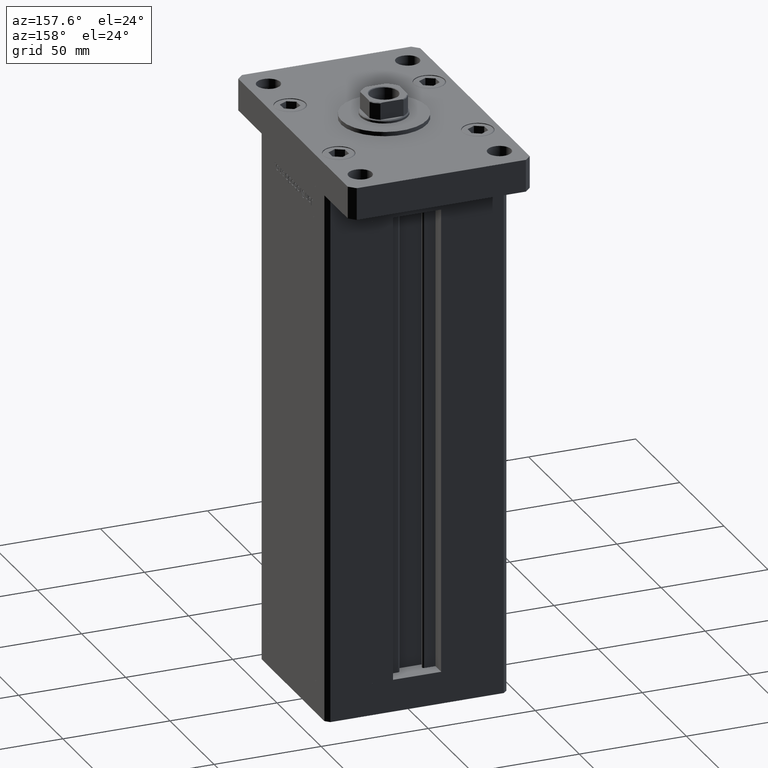
[diagram: clean part render]
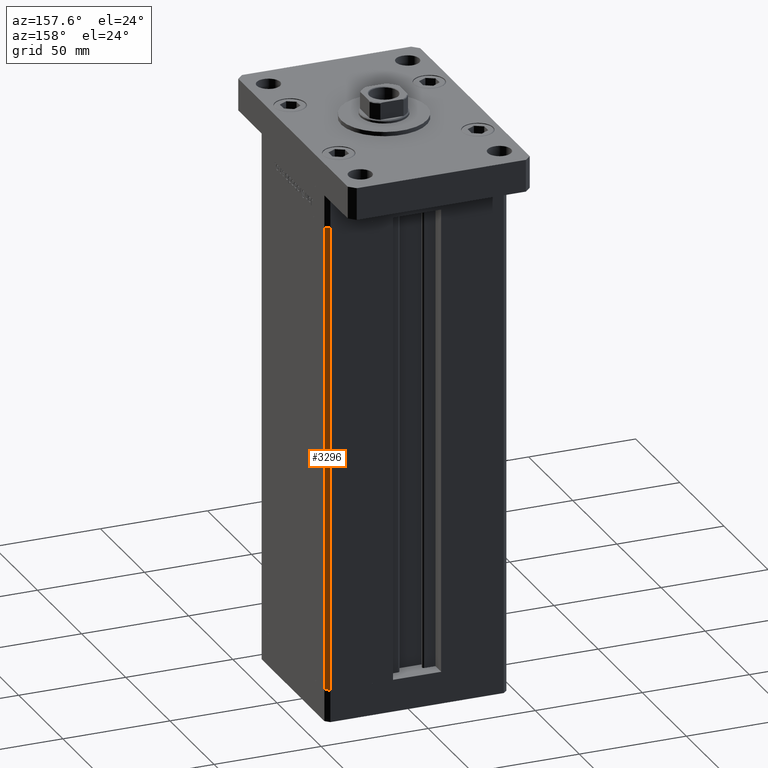
[diagram: same view with one face highlighted and labeled with its STEP entity id]
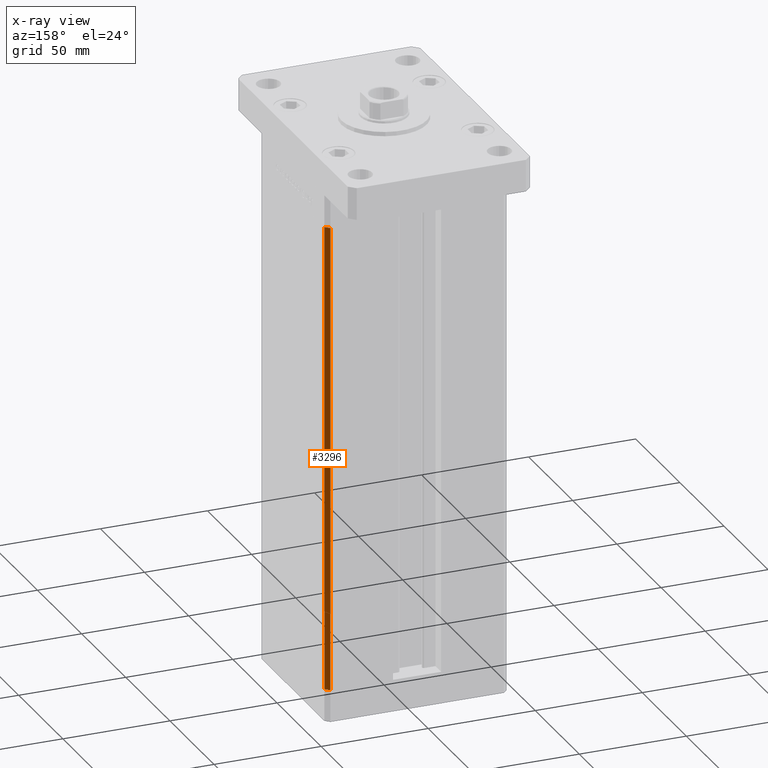
[diagram: x-ray of the same camera — body ghosted, the highlighted face saturated]
A machine part, auxiliary view. The second image highlights one B-rep face of the part: STEP entity #3296.
The next image is the same camera in x-ray: the body ghosted, the highlighted face saturated — about 0% of this face is hidden behind the body in this view.
In plain terms, the highlighted planar face has unit normal (0.7071, 0.7071, 0).
Its self-contained STEP definition (entity closure, byte-faithful):
#3296 = ADVANCED_FACE ( 'NONE', ( #32459 ), #7267, .T. ) ;
#4500 = EDGE_LOOP ( 'NONE', ( #31798, #11440, #11830, #12795 ) ) ;
#4830 = EDGE_CURVE ( 'NONE', #48698, #49487, #38785, .T. ) ;
#5051 = LINE ( 'NONE', #41919, #22099 ) ;
#5988 = CARTESIAN_POINT ( 'NONE',  ( 42.50000000000000711, 35.50000000000001421, 218.5000000000000000 ) ) ;
#6740 = CARTESIAN_POINT ( 'NONE',  ( 40.50000000000000000, 37.50000000000000711, 218.5000000000000000 ) ) ;
#7267 = PLANE ( 'NONE',  #30655 ) ;
#8774 = VERTEX_POINT ( 'NONE', #33570 ) ;
#11440 = ORIENTED_EDGE ( 'NONE', *, *, #36210, .F. ) ;
#11830 = ORIENTED_EDGE ( 'NONE', *, *, #47966, .T. ) ;
#12795 = ORIENTED_EDGE ( 'NONE', *, *, #4830, .T. ) ;
#15139 = LINE ( 'NONE', #15935, #47243 ) ;
#15935 = CARTESIAN_POINT ( 'NONE',  ( 40.50000000000000000, 37.50000000000000711, 0.000000000000000000 ) ) ;
#17077 = CARTESIAN_POINT ( 'NONE',  ( 42.50000000000000711, 35.50000000000001421, 0.000000000000000000 ) ) ;
#18725 = DIRECTION ( 'NONE',  ( -0.000000000000000000, -0.000000000000000000, -1.000000000000000000 ) ) ;
#18810 = LINE ( 'NONE', #22880, #22599 ) ;
#21847 = DIRECTION ( 'NONE',  ( 0.7071067811865500152, -0.7071067811865451302, 0.000000000000000000 ) ) ;
#22075 = DIRECTION ( 'NONE',  ( -0.000000000000000000, -0.000000000000000000, -1.000000000000000000 ) ) ;
#22099 = VECTOR ( 'NONE', #21847, 1000.000000000000114 ) ;
#22599 = VECTOR ( 'NONE', #22075, 1000.000000000000000 ) ;
#22880 = CARTESIAN_POINT ( 'NONE',  ( 40.50000000000000000, 37.50000000000000711, 218.5000000000000000 ) ) ;
#23802 = DIRECTION ( 'NONE',  ( -0.7071067811865500152, 0.7071067811865450192, 0.000000000000000000 ) ) ;
#28112 = CARTESIAN_POINT ( 'NONE',  ( 42.50000000000000711, 35.50000000000001421, 218.5000000000000000 ) ) ;
#28391 = DIRECTION ( 'NONE',  ( 0.7071067811865500152, -0.7071067811865451302, 0.000000000000000000 ) ) ;
#30655 = AXIS2_PLACEMENT_3D ( 'NONE', #6740, #36260, #23802 ) ;
#31798 = ORIENTED_EDGE ( 'NONE', *, *, #49780, .F. ) ;
#32459 = FACE_OUTER_BOUND ( 'NONE', #4500, .T. ) ;
#33570 = CARTESIAN_POINT ( 'NONE',  ( 40.50000000000000000, 37.50000000000000711, 0.000000000000000000 ) ) ;
#36210 = EDGE_CURVE ( 'NONE', #42939, #8774, #18810, .T. ) ;
#36260 = DIRECTION ( 'NONE',  ( 0.7071067811865450192, 0.7071067811865500152, -0.000000000000000000 ) ) ;
#37247 = CARTESIAN_POINT ( 'NONE',  ( 40.50000000000000000, 37.50000000000000711, 218.5000000000000000 ) ) ;
#38785 = LINE ( 'NONE', #5988, #49707 ) ;
#41919 = CARTESIAN_POINT ( 'NONE',  ( 40.50000000000000000, 37.50000000000000711, 218.5000000000000000 ) ) ;
#42939 = VERTEX_POINT ( 'NONE', #37247 ) ;
#47243 = VECTOR ( 'NONE', #28391, 1000.000000000000114 ) ;
#47966 = EDGE_CURVE ( 'NONE', #42939, #48698, #5051, .T. ) ;
#48698 = VERTEX_POINT ( 'NONE', #28112 ) ;
#49487 = VERTEX_POINT ( 'NONE', #17077 ) ;
#49707 = VECTOR ( 'NONE', #18725, 1000.000000000000000 ) ;
#49780 = EDGE_CURVE ( 'NONE', #8774, #49487, #15139, .T. ) ;